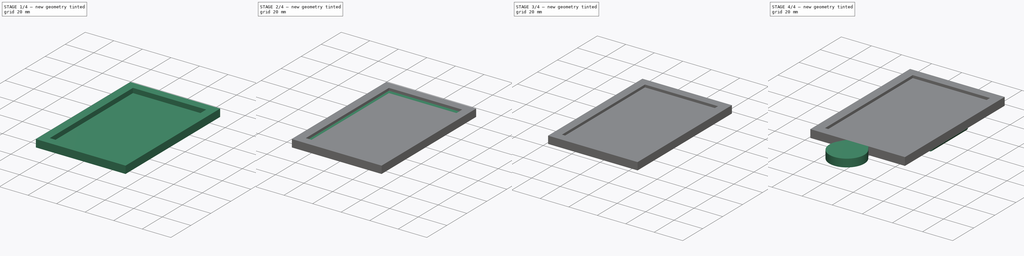
[diagram: build sequence overview — one tinted view per stage of 4, left to right]
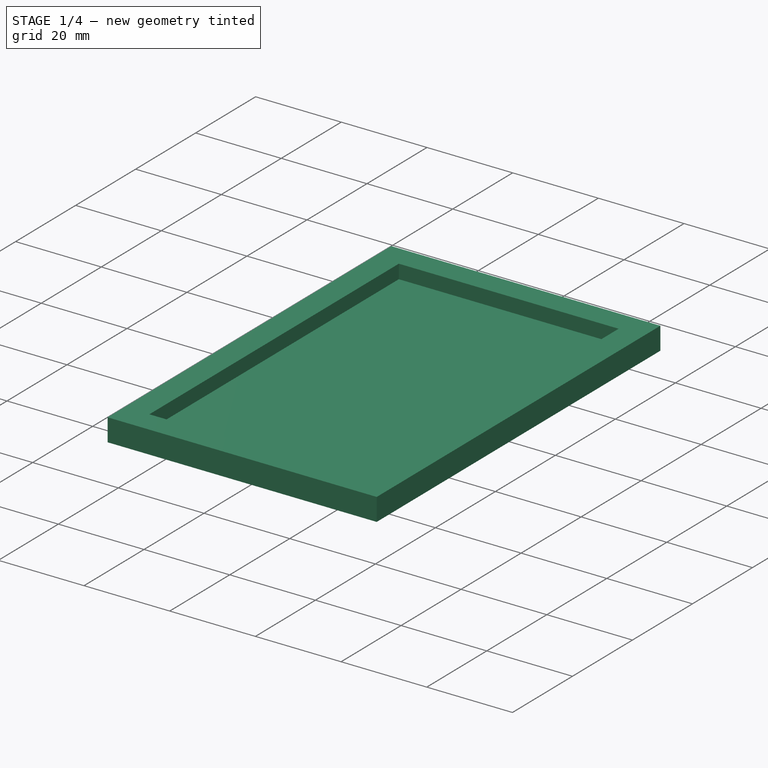
[diagram: stage 1 of 4 — iso view after this stage's code; geometry added in this stage tinted green]
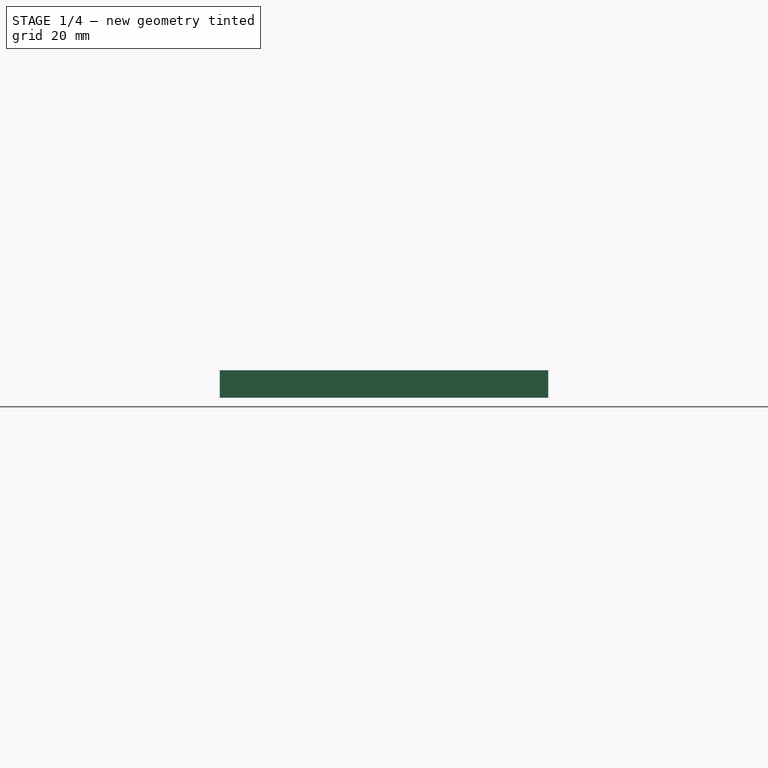
[diagram: stage 1 of 4 — front view after this stage's code; geometry added in this stage tinted green]
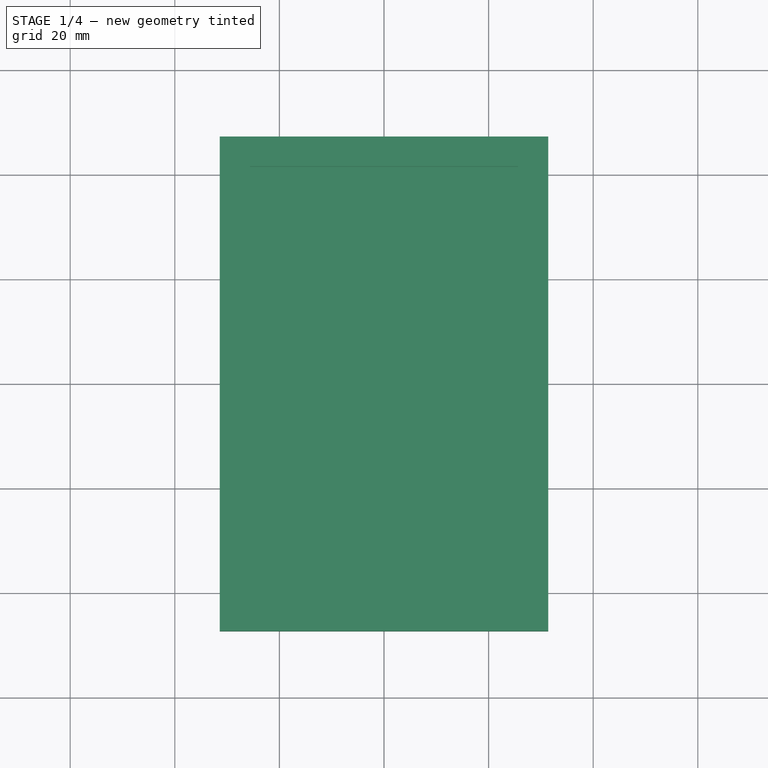
[diagram: stage 1 of 4 — top view after this stage's code; geometry added in this stage tinted green]
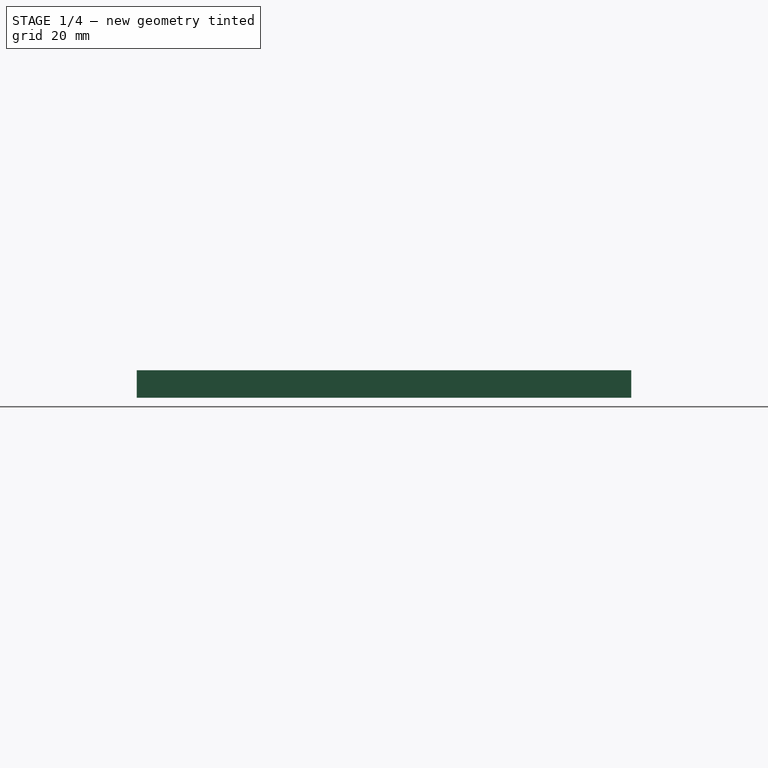
[diagram: stage 1 of 4 — right view after this stage's code; geometry added in this stage tinted green]
FCSTD DOCUMENT  (FreeCAD 0.21R33771 (Git))
Label: ID_Badge_With_Gov_Key_Holder
License: All rights reserved
LicenseURL: http://en.wikipedia.org/wiki/All_rights_reserved
objects: Sketcher::SketchObject×8, PartDesign::Pad×6, PartDesign::Pocket×2, PartDesign::Mirrored×1, PartDesign::Body×1, App::Part×1
note: 26 computed .brp shape members not serialized (recipe doc carries the construction recipe); baked Part::Feature solids carry a one-line shape summary decoded from their .brp

FEATURE [Sketcher::SketchObject] Sketch
  FullyConstrained = true
  MapMode = 5
  Support = -> [XY_Plane001]
  sketch-geometry (5):
    g0: LineSegment StartX=-31.405 StartY=47.28 StartZ=0 EndX=-31.405 EndY=-47.28 EndZ=0
    g1: LineSegment StartX=-31.405 StartY=-47.28 StartZ=0 EndX=31.405 EndY=-47.28 EndZ=0
    g2: LineSegment StartX=31.405 StartY=-47.28 StartZ=0 EndX=31.405 EndY=47.28 EndZ=0
    g3: LineSegment StartX=31.405 StartY=47.28 StartZ=0 EndX=-31.405 EndY=47.28 EndZ=0
    g4: GeomPoint X=0 Y=0 Z=0
  constraints (12):
    c: Coincident(g0,g1)
    c: Coincident(g1,g2)
    c: Coincident(g2,g3)
    c: Coincident(g3,g0)
    c: Horizontal(g1)
    c: Horizontal(g3)
    c: Vertical(g0)
    c: Vertical(g2)
    c: Symmetric(g1,g0,g4)
    c: Coincident(g4,g-1)
    c: DistanceY(g0,g0) = 94.56
    c: DistanceX(g3,g3) = 62.81
FEATURE [PartDesign::Pad] Pad
  Direction = (0,0,1)
  Length = 5.27
  Length2 = 10
  Profile = -> Sketch
  ReferenceAxis = -> Sketch [N_Axis]
  Type = 0
FEATURE [Sketcher::SketchObject] Sketch001
  AttachmentOffset = pos=(0,0,5.27) rot=(0,0,1;0rad)
  FullyConstrained = true
  MapMode = 5
  Placement = pos=(0,0,5.27) rot=(0,0,1;0rad)
  Support = -> [XY_Plane001]
  sketch-geometry (5):
    g0: LineSegment StartX=-25.65 StartY=41.58 StartZ=0 EndX=-25.65 EndY=-41.58 EndZ=0
    g1: LineSegment StartX=-25.65 StartY=-41.58 StartZ=0 EndX=25.65 EndY=-41.58 EndZ=0
    g2: LineSegment StartX=25.65 StartY=-41.58 StartZ=0 EndX=25.65 EndY=41.58 EndZ=0
    g3: LineSegment StartX=25.65 StartY=41.58 StartZ=0 EndX=-25.65 EndY=41.58 EndZ=0
    g4: GeomPoint X=0 Y=0 Z=0
  constraints (12):
    c: Coincident(g0,g1)
    c: Coincident(g1,g2)
    c: Coincident(g2,g3)
    c: Coincident(g3,g0)
    c: Horizontal(g1)
    c: Horizontal(g3)
    c: Vertical(g0)
    c: Vertical(g2)
    c: Symmetric(g1,g0,g4)
    c: Coincident(g4,g-1)
    c: DistanceY(g0,g0) = 83.16
    c: DistanceX(g3,g3) = 51.3
FEATURE [PartDesign::Pocket] Pocket
  BaseFeature = -> Pad
  Direction = (0,0,-1)
  Length = 3.27
  Length2 = 5
  Profile = -> Sketch001
  ReferenceAxis = -> Sketch001 [N_Axis]
  Type = 0
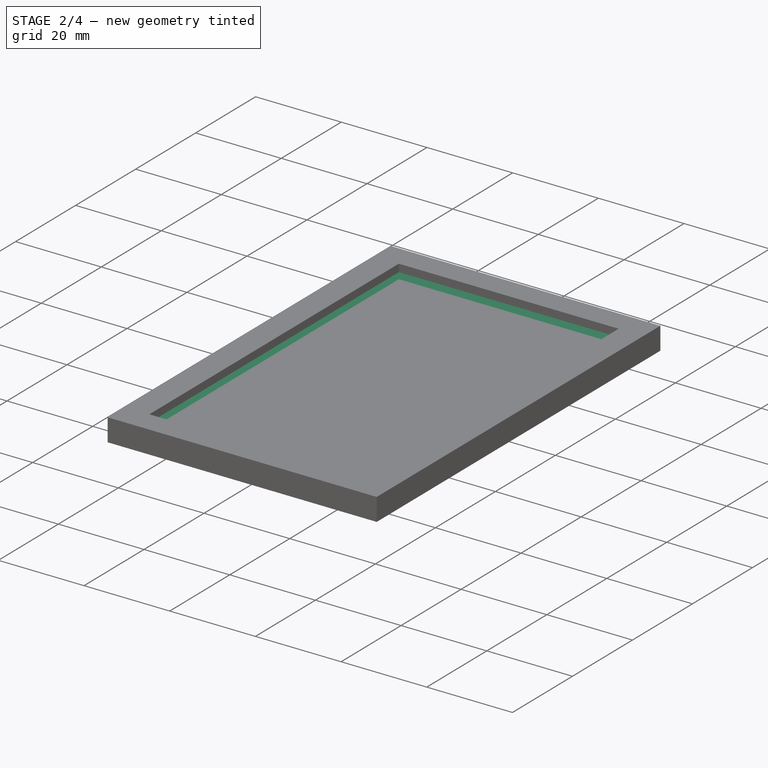
[diagram: stage 2 of 4 — iso view after this stage's code; geometry added in this stage tinted green]
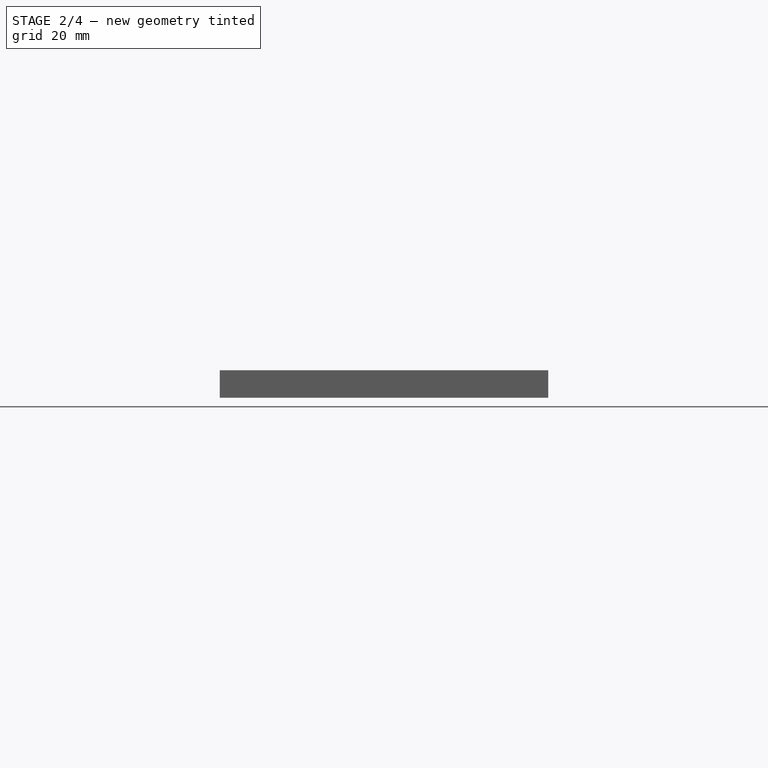
[diagram: stage 2 of 4 — front view after this stage's code; geometry added in this stage tinted green]
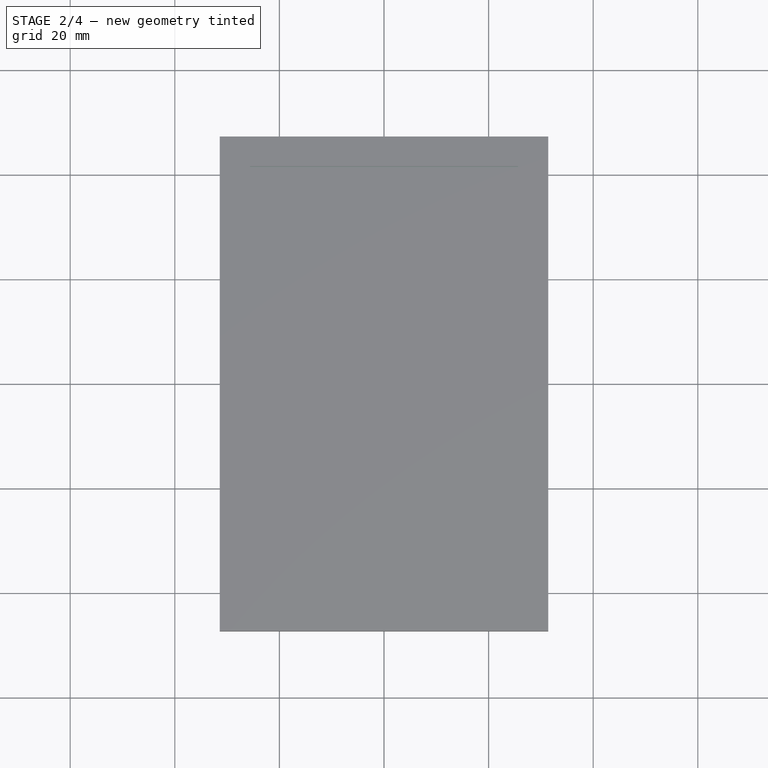
[diagram: stage 2 of 4 — top view after this stage's code; geometry added in this stage tinted green]
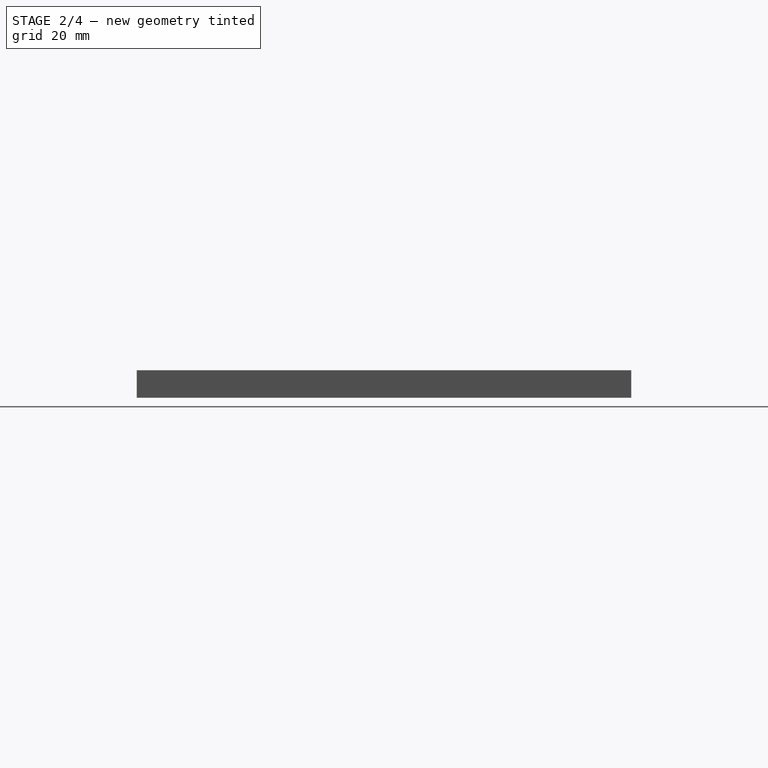
[diagram: stage 2 of 4 — right view after this stage's code; geometry added in this stage tinted green]
FEATURE [Sketcher::SketchObject] Sketch002
  AttachmentOffset = pos=(0,0,3.5) rot=(0,0,1;0rad)
  ExternalGeometry = -> [Pocket]
  FullyConstrained = true
  MapMode = 5
  Placement = pos=(0,0,3.5) rot=(0,0,1;0rad)
  Support = -> [XY_Plane001]
  expr: Constraints[11] = 56.5 / 2
  sketch-geometry (4):
    g0: LineSegment StartX=-28.25 StartY=47.28 StartZ=0 EndX=-28.25 EndY=-43.22 EndZ=0
    g1: LineSegment StartX=-28.25 StartY=-43.22 StartZ=0 EndX=28.25 EndY=-43.22 EndZ=0
    g2: LineSegment StartX=28.25 StartY=-43.22 StartZ=0 EndX=28.25 EndY=47.28 EndZ=0
    g3: LineSegment StartX=28.25 StartY=47.28 StartZ=0 EndX=-28.25 EndY=47.28 EndZ=0
  constraints (12):
    c: Horizontal(g3,g-3)
    c: Horizontal(g3)
    c: Coincident(g0,g3)
    c: Coincident(g2,g3)
    c: DistanceX(g3,g3) = 56.5
    c: DistanceY(g0,g0) = 90.5
    c: Coincident(g0,g1)
    c: Coincident(g2,g1)
    c: DistanceX(g1,g1) = 56.5
    c: DistanceY(g2,g2) = 90.5
    c: Vertical(g0)
    c: DistanceX(g0,g-1) = 28.25
FEATURE [PartDesign::Pocket] Pocket001
  BaseFeature = -> Pocket
  Direction = (0,0,-1)
  Length = 1.5
  Length2 = 5
  Profile = -> Sketch002
  ReferenceAxis = -> Sketch002 [N_Axis]
  Type = 0
FEATURE [Sketcher::SketchObject] Sketch003
  AttachmentOffset = pos=(0,0,43.22) rot=(0,0,1;0rad)
  ExternalGeometry = -> [Pocket001]
  FullyConstrained = true
  MapMode = 5
  Placement = pos=(0,-43.22,-9.6e-15) rot=(1,0,0;1.5708rad)
  Support = -> [XZ_Plane001]
  sketch-geometry (3):
    g0: LineSegment StartX=-25.65 StartY=3.5 StartZ=0 EndX=-28.25 EndY=2.2 EndZ=0
    g1: LineSegment StartX=-28.25 StartY=2.2 StartZ=0 EndX=-28.25 EndY=3.5 EndZ=0
    g2: LineSegment StartX=-28.25 StartY=3.5 StartZ=0 EndX=-25.65 EndY=3.5 EndZ=0
  constraints (7):
    c: Coincident(g0,g-6)
    c: PointOnObject(g0,g-4)
    c: Coincident(g1,g0)
    c: Coincident(g1,g-4)
    c: Coincident(g2,g1)
    c: Coincident(g2,g0)
    c: DistanceY(g-5,g0) = 0.2
FEATURE [PartDesign::Pad] Pad001
  BaseFeature = -> Pocket001
  Direction = (0,-1,-2e-16)
  Length = 90.5
  Length2 = 10
  Profile = -> Sketch003
  ReferenceAxis = -> Sketch003 [N_Axis]
  Reversed = true
  Type = 0
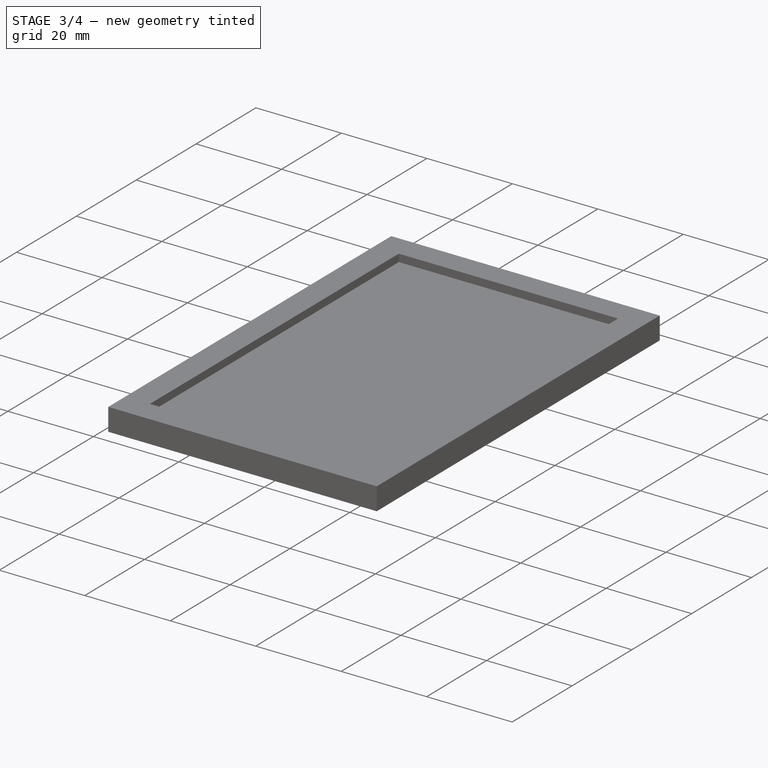
[diagram: stage 3 of 4 — iso view after this stage's code; geometry added in this stage tinted green]
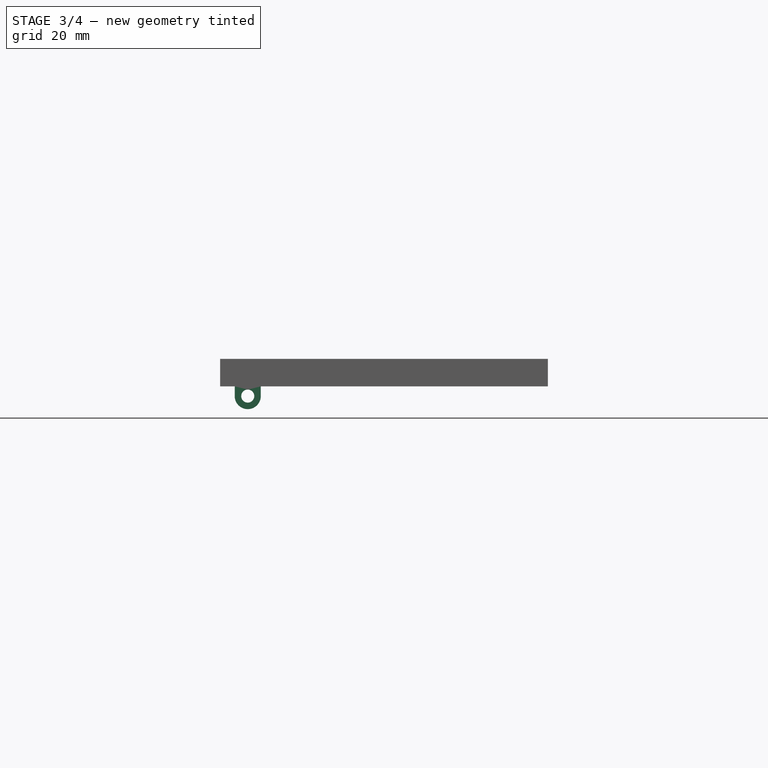
[diagram: stage 3 of 4 — front view after this stage's code; geometry added in this stage tinted green]
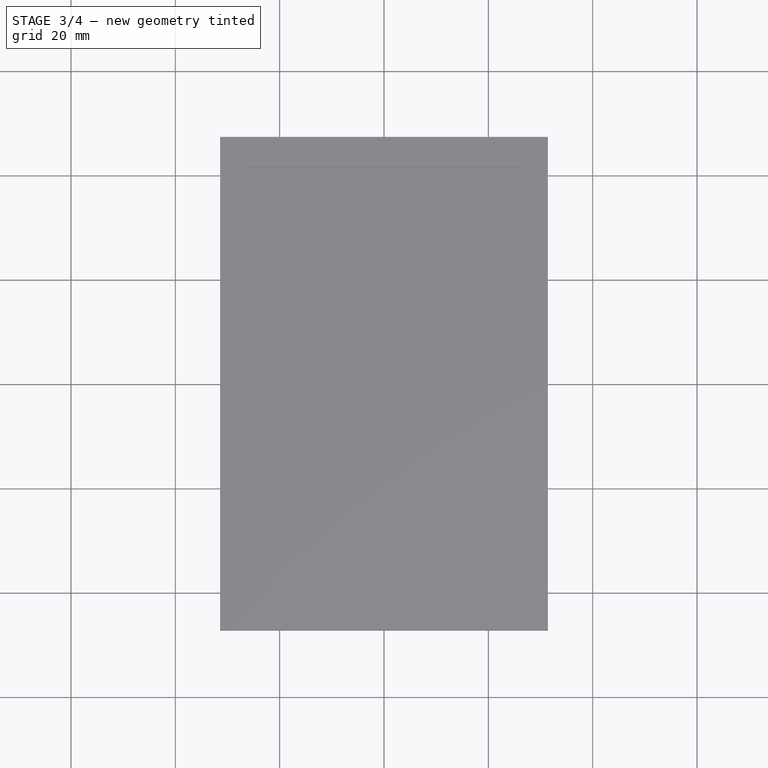
[diagram: stage 3 of 4 — top view after this stage's code; geometry added in this stage tinted green]
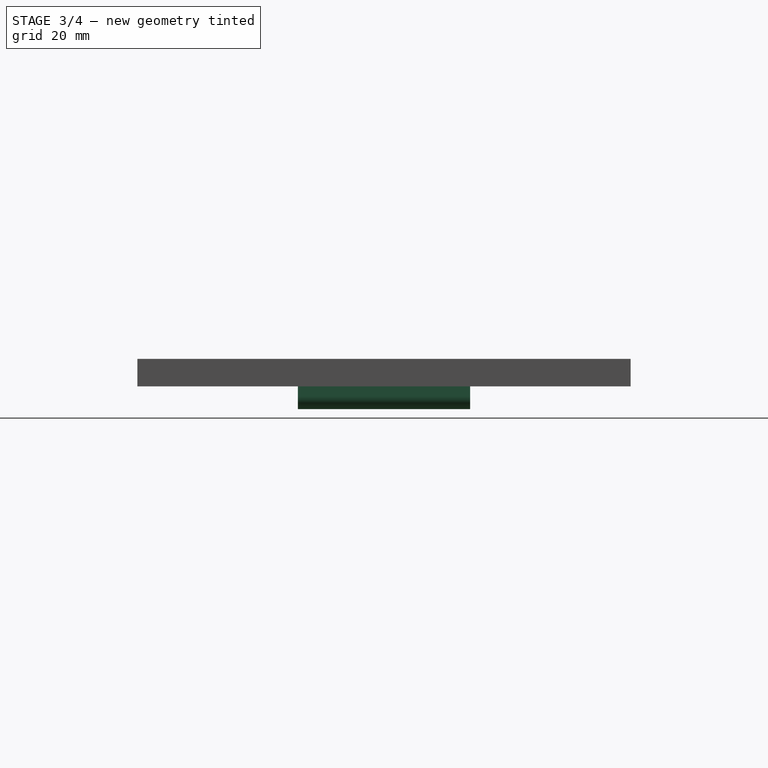
[diagram: stage 3 of 4 — right view after this stage's code; geometry added in this stage tinted green]
FEATURE [Sketcher::SketchObject] Sketch004
  AttachmentOffset = pos=(0,0,43.22) rot=(0,0,1;0rad)
  ExternalGeometry = -> [Pad001]
  FullyConstrained = true
  MapMode = 5
  Placement = pos=(0,-43.22,-9.6e-15) rot=(1,0,0;1.5708rad)
  Support = -> [XZ_Plane001]
  sketch-geometry (3):
    g0: LineSegment StartX=25.65 StartY=3.5 StartZ=0 EndX=28.25 EndY=3.5 EndZ=0
    g1: LineSegment StartX=28.25 StartY=3.5 StartZ=0 EndX=28.25 EndY=2.2 EndZ=0
    g2: LineSegment StartX=25.65 StartY=3.5 StartZ=0 EndX=28.25 EndY=2.2 EndZ=0
  constraints (7):
    c: Coincident(g0,g-3)
    c: Coincident(g0,g-5)
    c: Coincident(g1,g0)
    c: PointOnObject(g1,g-5)
    c: Coincident(g2,g0)
    c: Coincident(g2,g1)
    c: DistanceY(g-6,g1) = 0.2
FEATURE [PartDesign::Pad] Pad002
  BaseFeature = -> Pad001
  Direction = (0,-1,-2e-16)
  Length = 90.5
  Length2 = 10
  Profile = -> Sketch004
  ReferenceAxis = -> Sketch004 [N_Axis]
  Reversed = true
  Type = 0
FEATURE [Sketcher::SketchObject] Sketch005
  ExternalGeometry = -> [Pad002]
  FullyConstrained = true
  MapMode = 5
  Placement = pos=(0,0,0) rot=(0.57735,0.57735,0.57735;2.0944rad)
  Support = -> [YZ_Plane001]
  sketch-geometry (3):
    g0: LineSegment StartX=-41.58 StartY=3.5 StartZ=0 EndX=-43.22 EndY=2.29319 EndZ=0
    g1: LineSegment StartX=-43.22 StartY=2.29319 StartZ=0 EndX=-43.22 EndY=3.5 EndZ=0
    g2: LineSegment StartX=-43.22 StartY=3.5 StartZ=0 EndX=-41.58 EndY=3.5 EndZ=0
  constraints (7):
    c: Coincident(g0,g-4)
    c: PointOnObject(g0,g-5)
    c: Coincident(g1,g0)
    c: Coincident(g1,g-5)
    c: Coincident(g2,g1)
    c: Coincident(g2,g0)
    c: Angle(g0,g1) = 0.936406
FEATURE [PartDesign::Pad] Pad003
  BaseFeature = -> Pad002
  Direction = (1,-2e-16,3e-16)
  Length = 57
  Length2 = 10
  Midplane = true
  Profile = -> Sketch005
  ReferenceAxis = -> Sketch005 [N_Axis]
  Type = 0
FEATURE [Sketcher::SketchObject] Sketch006
  FullyConstrained = false
  MapMode = 5
  Placement = pos=(0,0,0) rot=(1,0,0;1.5708rad)
  Support = -> [XZ_Plane001]
  sketch-geometry (5):
    g0: Circle CenterX=-26.1154 CenterY=-1.86558 CenterZ=0 NormalX=0 NormalY=0 NormalZ=1 AngleXU=0 Radius=1.25
    g1: LineSegment StartX=-28.6154 StartY=0.722295 StartZ=0 EndX=-28.6154 EndY=-1.86558 EndZ=0
    g2: LineSegment StartX=-23.6154 StartY=0.722295 StartZ=0 EndX=-23.6154 EndY=-1.86558 EndZ=0
    g3: ArcOfCircle CenterX=-26.1154 CenterY=-1.86558 CenterZ=0 NormalX=0 NormalY=0 NormalZ=1 AngleXU=0 Radius=2.5 StartAngle=3.14159 EndAngle=6.28319
    g4: LineSegment StartX=-28.6154 StartY=0.722295 StartZ=0 EndX=-23.6154 EndY=0.722295 EndZ=0
  constraints (12):
    c: Diameter(g0) = 2.5
    c: Vertical(g1)
    c: Vertical(g2)
    c: Horizontal(g1,g2)
    c: Coincident(g0,g3)
    c: Coincident(g3,g2)
    c: Coincident(g3,g1)
    c: Horizontal(g1,g2)
    c: Diameter(g3) = 5
    c: Horizontal(g1,g0)
    c: Coincident(g4,g1)
    c: Coincident(g4,g2)
FEATURE [PartDesign::Pad] Pad004
  BaseFeature = -> Pad003
  Direction = (0,-1,-2e-16)
  Length = 33
  Length2 = 10
  Midplane = true
  Profile = -> Sketch006
  ReferenceAxis = -> Sketch006 [N_Axis]
  Type = 0
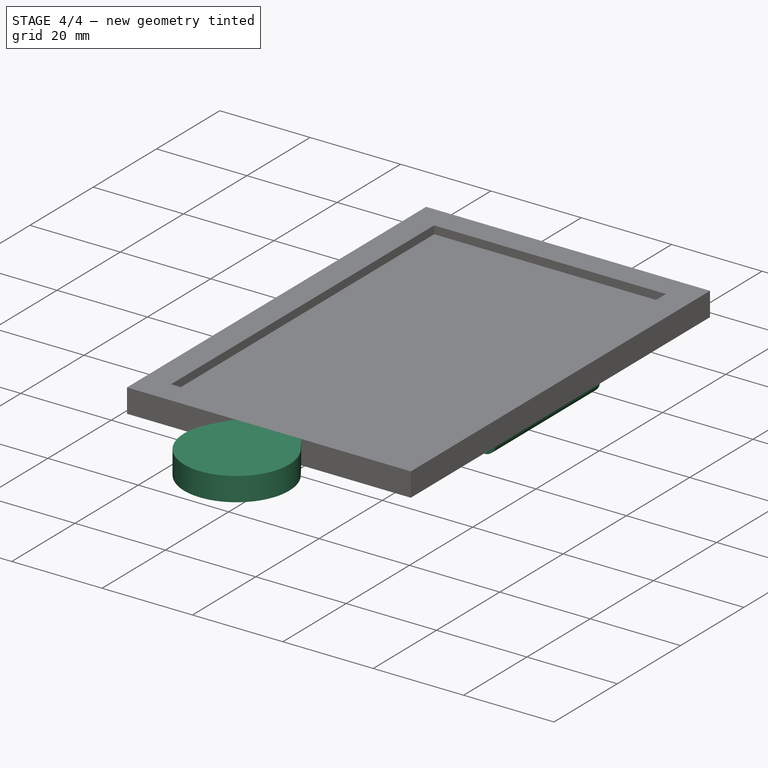
[diagram: stage 4 of 4 — iso view after this stage's code; geometry added in this stage tinted green]
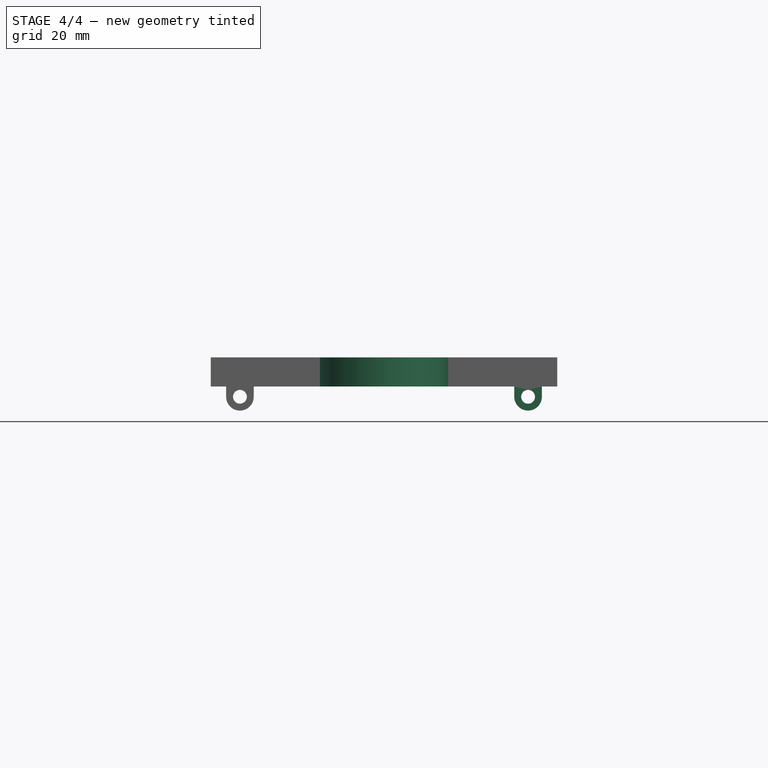
[diagram: stage 4 of 4 — front view after this stage's code; geometry added in this stage tinted green]
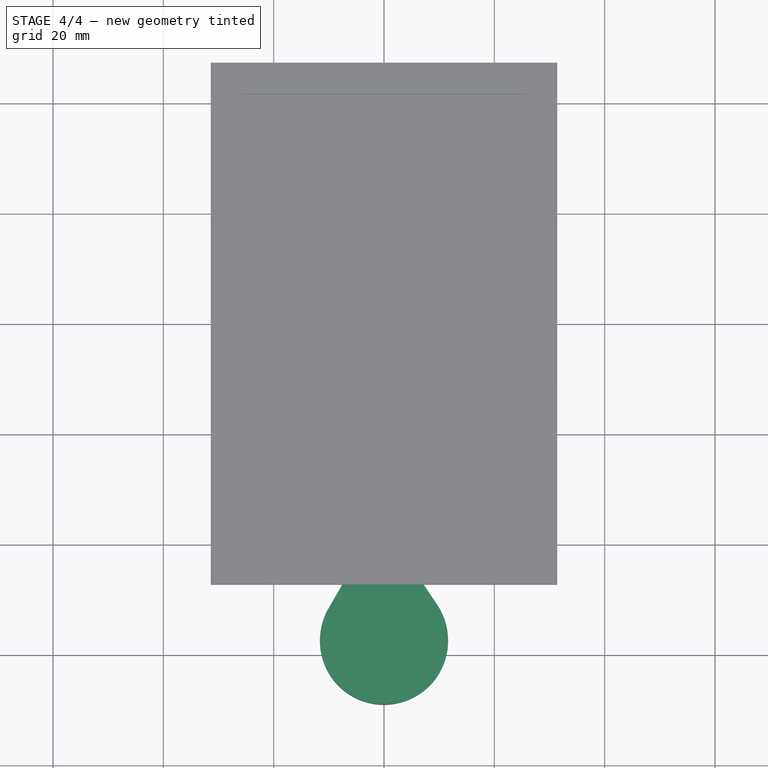
[diagram: stage 4 of 4 — top view after this stage's code; geometry added in this stage tinted green]
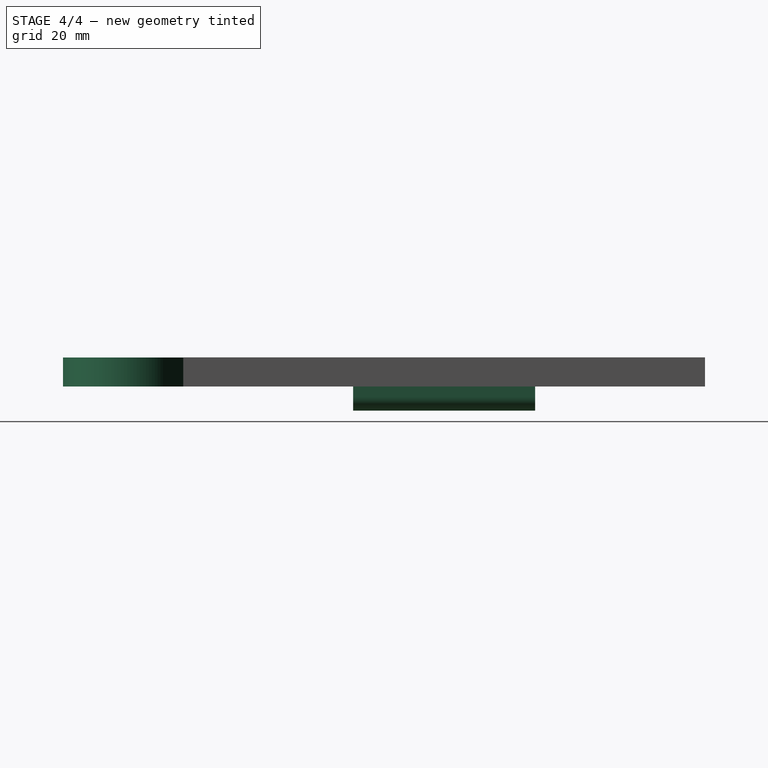
[diagram: stage 4 of 4 — right view after this stage's code; geometry added in this stage tinted green]
FEATURE [Sketcher::SketchObject] Sketch007
  FullyConstrained = false
  MapMode = 5
  Support = -> [XY_Plane001]
  sketch-geometry (4):
    g0: ArcOfCircle CenterX=0 CenterY=-57.4657 CenterZ=0 NormalX=0 NormalY=0 NormalZ=1 AngleXU=0 Radius=11.619 StartAngle=2.61657 EndAngle=6.87713
    g1: LineSegment StartX=-6.92781 StartY=-46.2449 StartZ=0 EndX=-10.054 EndY=-51.6419 EndZ=0
    g2: LineSegment StartX=9.62908 StartY=-50.9633 StartZ=0 EndX=6.44279 EndY=-46.2449 EndZ=0
    g3: LineSegment StartX=-6.92781 StartY=-46.2449 StartZ=0 EndX=6.44279 EndY=-46.2449 EndZ=0
  constraints (6):
    c: Tangent(g1,g0) = -1.5708
    c: Tangent(g0,g2) = -1.5708
    c: PointOnObject(g0,g-2)
    c: Horizontal(g3)
    c: Coincident(g1,g3)
    c: Coincident(g2,g3)
FEATURE [PartDesign::Pad] Pad005
  BaseFeature = -> Pad004
  Direction = (0,0,1)
  Length = 5.25
  Length2 = 10
  Profile = -> Sketch007
  ReferenceAxis = -> Sketch007 [N_Axis]
  Type = 0
FEATURE [PartDesign::Mirrored] Mirrored
  BaseFeature = -> Pad005
  MirrorPlane = -> Sketch006 [V_Axis]
  Originals = -> [Pad004]
FEATURE [PartDesign::Body] Body
  Group = -> [Sketch,Pad,Sketch001,Pocket,Sketch002,Pocket001,Sketch003,Pad001,Sketch004,Pad002,Sketch005,Pad003,Sketch006,Pad004,Sketch007,Pad005,Mirrored]
  Origin = -> Origin001
  Tip = -> Mirrored
FEATURE [App::Part] Part
  Group = -> [Body]
  Origin = -> Origin
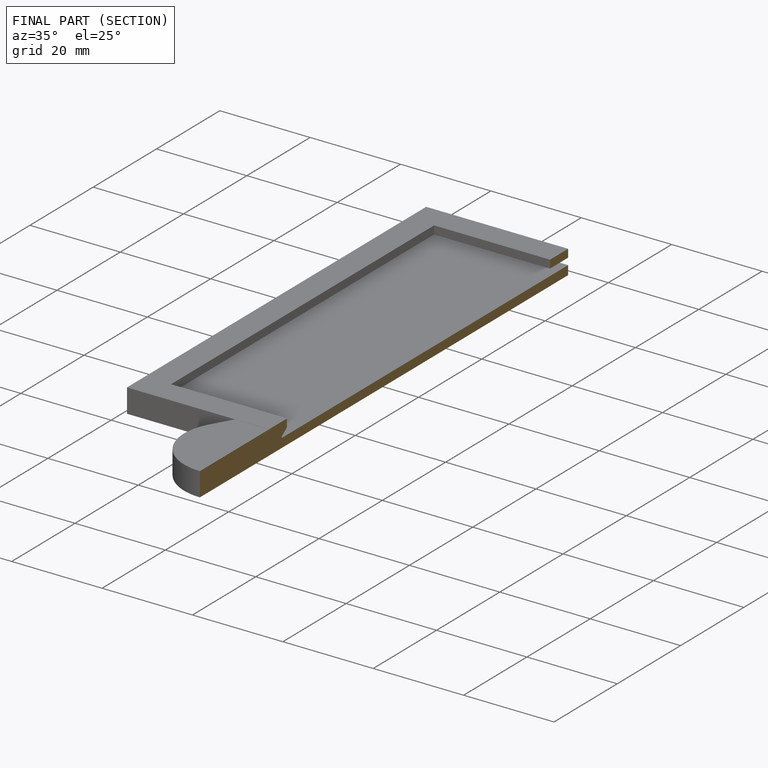
[diagram: finished part — half-section view (interior)]
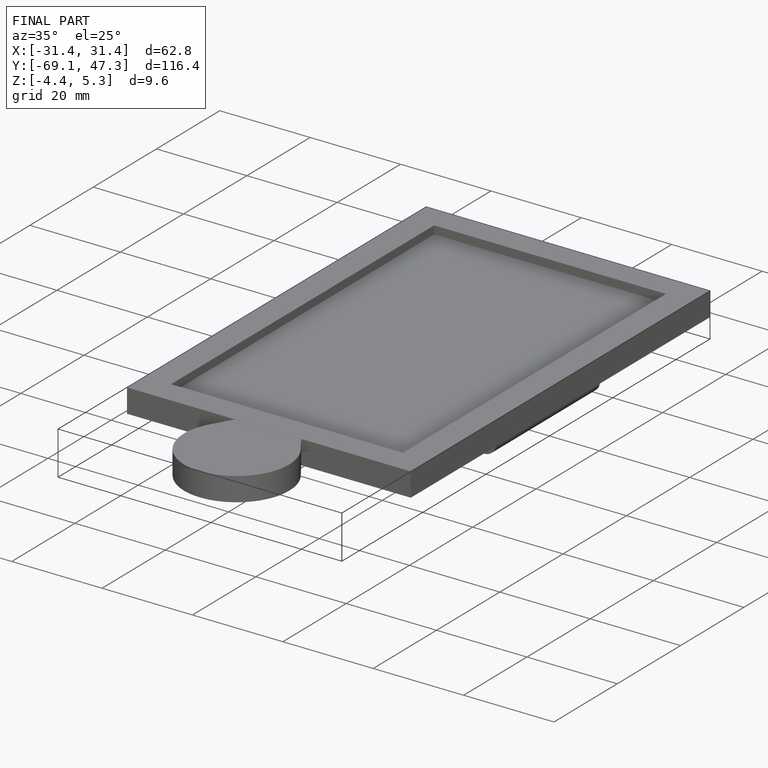
[diagram: finished part — iso view with bounding-box wireframe]
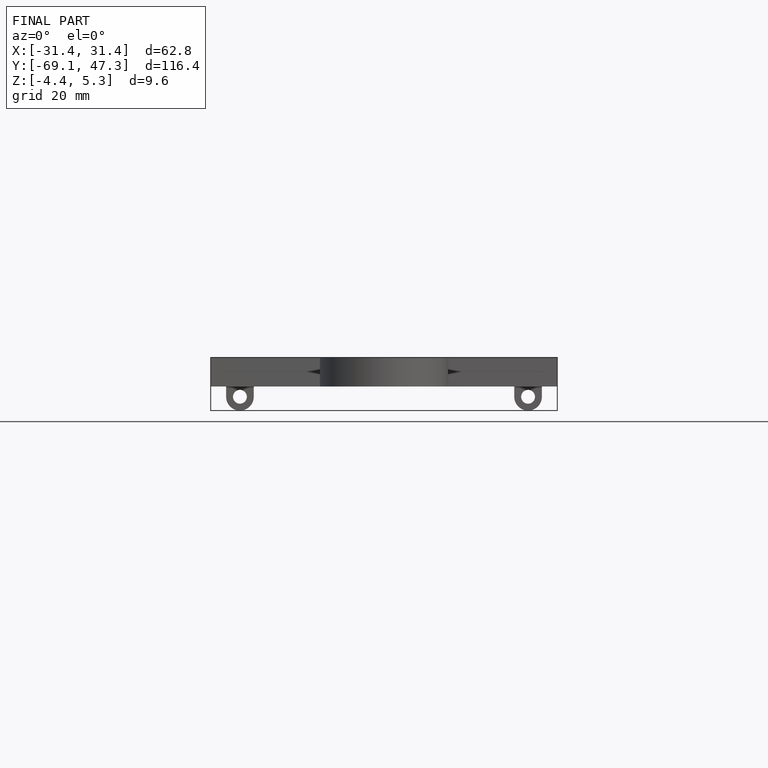
[diagram: finished part — front view with bounding-box wireframe]
